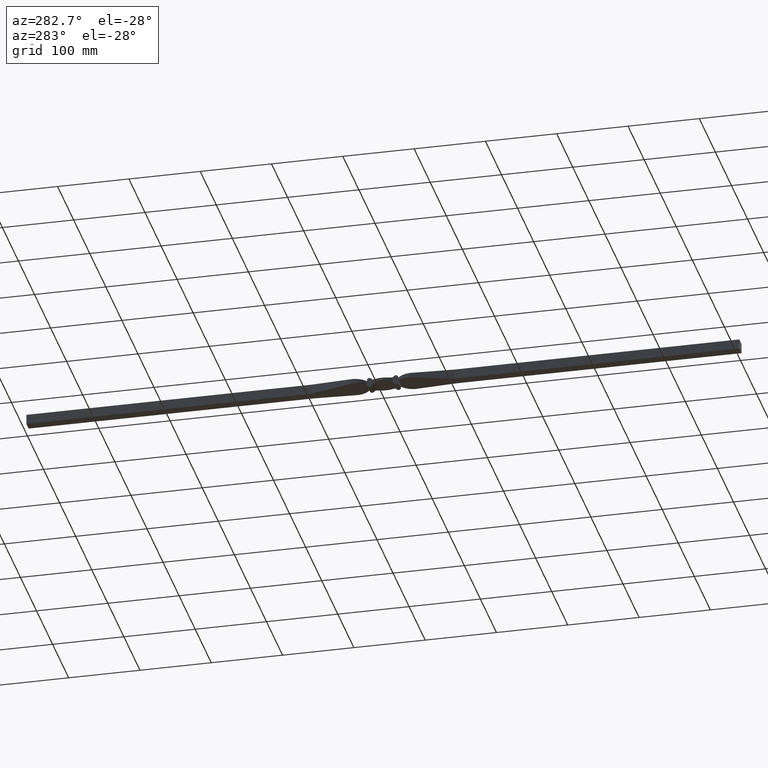
[diagram: clean part render]
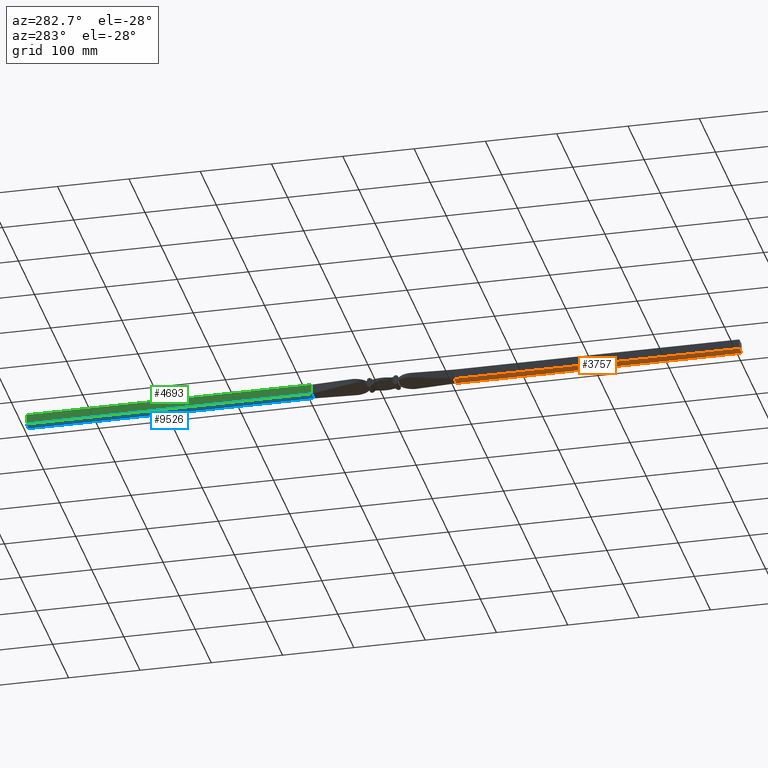
[diagram: same view with three faces highlighted in distinct colors, each labeled with its STEP entity id]
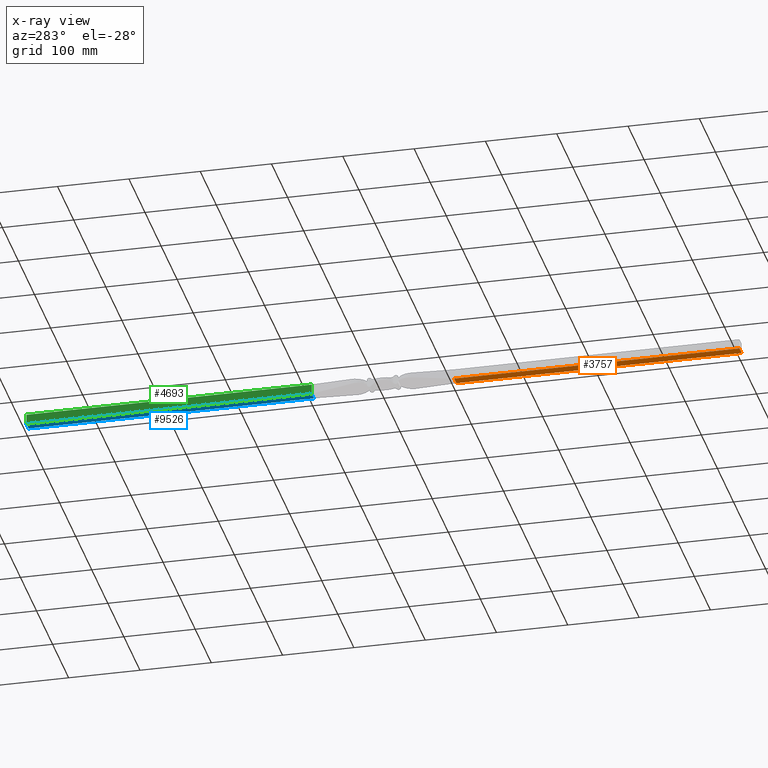
[diagram: x-ray of the same camera — body ghosted, the three highlighted faces saturated]
A machine part, auxiliary view with three faces highlighted in distinct colors.
The next image is the same camera in x-ray (body ghosted, the three faces saturated) — at least one of them is partly hidden behind the body in this view.
Their STEP definitions:

[orange] entity #3757 — the highlighted planar face has unit normal (0, 0, 1).
#236 = ORIENTED_EDGE ( 'NONE', *, *, #8750, .T. ) ;
#1062 = CARTESIAN_POINT ( 'NONE',  ( -7.000000000004256151, -1019.798989873223377, -6.999999999999999112 ) ) ;
#1209 = VECTOR ( 'NONE', #10844, 1000.000000000000000 ) ;
#1742 = EDGE_LOOP ( 'NONE', ( #7665, #5087, #236, #10213 ) ) ;
#2050 = VECTOR ( 'NONE', #7137, 1000.000000000000000 ) ;
#2110 = CARTESIAN_POINT ( 'NONE',  ( 6.999999999998149924, -500.0000000000000000, -6.999999999999999112 ) ) ;
#2450 = VECTOR ( 'NONE', #10319, 1000.000000000000000 ) ;
#2593 = CARTESIAN_POINT ( 'NONE',  ( 0.000000000000000000, -100.0000000000000000, -7.000000000000000000 ) ) ;
#2920 = LINE ( 'NONE', #1062, #11538 ) ;
#3216 = FACE_OUTER_BOUND ( 'NONE', #1742, .T. ) ;
#3276 = EDGE_CURVE ( 'NONE', #6981, #3714, #5532, .T. ) ;
#3419 = VERTEX_POINT ( 'NONE', #2110 ) ;
#3566 = CARTESIAN_POINT ( 'NONE',  ( -7.000000000004256151, -500.0000000000000000, -6.999999999999999112 ) ) ;
#3594 = CARTESIAN_POINT ( 'NONE',  ( -7.000000000001851852, -500.0000000000000000, -6.999999999999999112 ) ) ;
#3689 = DIRECTION ( 'NONE',  ( 0.000000000000000000, 0.000000000000000000, 1.000000000000000000 ) ) ;
#3714 = VERTEX_POINT ( 'NONE', #10239 ) ;
#3757 = ADVANCED_FACE ( 'NONE', ( #3216 ), #8432, .F. ) ;
#4331 = CARTESIAN_POINT ( 'NONE',  ( 7.000000000000000888, -100.0000000000000284, -6.999999999999999112 ) ) ;
#4359 = LINE ( 'NONE', #10350, #2450 ) ;
#4629 = DIRECTION ( 'NONE',  ( 4.625929269271485322E-15, 1.000000000000000000, -0.000000000000000000 ) ) ;
#5087 = ORIENTED_EDGE ( 'NONE', *, *, #7101, .T. ) ;
#5532 = LINE ( 'NONE', #2593, #2050 ) ;
#6230 = AXIS2_PLACEMENT_3D ( 'NONE', #7333, #3689, #6770 ) ;
#6770 = DIRECTION ( 'NONE',  ( 1.000000000000000000, 0.000000000000000000, -0.000000000000000000 ) ) ;
#6981 = VERTEX_POINT ( 'NONE', #4331 ) ;
#7101 = EDGE_CURVE ( 'NONE', #3419, #10242, #10869, .T. ) ;
#7137 = DIRECTION ( 'NONE',  ( -1.000000000000000000, 0.000000000000000000, 0.000000000000000000 ) ) ;
#7333 = CARTESIAN_POINT ( 'NONE',  ( -7.000000000004256151, -1019.798989873223377, -6.999999999999999112 ) ) ;
#7665 = ORIENTED_EDGE ( 'NONE', *, *, #10916, .F. ) ;
#8432 = PLANE ( 'NONE',  #6230 ) ;
#8750 = EDGE_CURVE ( 'NONE', #10242, #3714, #2920, .T. ) ;
#10213 = ORIENTED_EDGE ( 'NONE', *, *, #3276, .F. ) ;
#10239 = CARTESIAN_POINT ( 'NONE',  ( -7.000000000000000888, -100.0000000000000000, -6.999999999999999112 ) ) ;
#10242 = VERTEX_POINT ( 'NONE', #3594 ) ;
#10319 = DIRECTION ( 'NONE',  ( 4.625929269271485322E-15, 1.000000000000000000, -0.000000000000000000 ) ) ;
#10350 = CARTESIAN_POINT ( 'NONE',  ( 6.999999999995745625, -1019.798989873223377, -6.999999999999999112 ) ) ;
#10844 = DIRECTION ( 'NONE',  ( -1.000000000000000000, 0.000000000000000000, 0.000000000000000000 ) ) ;
#10869 = LINE ( 'NONE', #3566, #1209 ) ;
#10916 = EDGE_CURVE ( 'NONE', #3419, #6981, #4359, .T. ) ;
#11538 = VECTOR ( 'NONE', #4629, 1000.000000000000000 ) ;

[blue] entity #9526 — the highlighted planar face has unit normal (0, 0, 1).
#185 = ORIENTED_EDGE ( 'NONE', *, *, #9418, .T. ) ;
#868 = ORIENTED_EDGE ( 'NONE', *, *, #11120, .F. ) ;
#1256 = PLANE ( 'NONE',  #10179 ) ;
#1375 = DIRECTION ( 'NONE',  ( -1.000000000000000000, 0.000000000000000000, 0.000000000000000000 ) ) ;
#1673 = CARTESIAN_POINT ( 'NONE',  ( 6.999999999999998224, 1019.798989873223377, -7.000000000000000000 ) ) ;
#1704 = DIRECTION ( 'NONE',  ( -0.000000000000000000, -1.000000000000000000, -0.000000000000000000 ) ) ;
#1988 = ORIENTED_EDGE ( 'NONE', *, *, #3893, .F. ) ;
#2531 = CARTESIAN_POINT ( 'NONE',  ( 7.000000000000000888, 100.0000000000000000, -6.999999999999999112 ) ) ;
#2785 = VERTEX_POINT ( 'NONE', #6057 ) ;
#3019 = LINE ( 'NONE', #1673, #10496 ) ;
#3235 = CARTESIAN_POINT ( 'NONE',  ( -7.000000000000002665, 500.0000000000000000, -7.000000000000000000 ) ) ;
#3893 = EDGE_CURVE ( 'NONE', #2785, #9207, #4652, .T. ) ;
#4536 = CARTESIAN_POINT ( 'NONE',  ( -7.000000000000002665, 1019.798989873223377, -7.000000000000000000 ) ) ;
#4652 = LINE ( 'NONE', #3235, #10837 ) ;
#4977 = DIRECTION ( 'NONE',  ( 1.000000000000000000, 0.000000000000000000, -0.000000000000000000 ) ) ;
#5056 = VECTOR ( 'NONE', #11338, 1000.000000000000000 ) ;
#5392 = VECTOR ( 'NONE', #10033, 1000.000000000000000 ) ;
#6057 = CARTESIAN_POINT ( 'NONE',  ( 6.999999999999998224, 500.0000000000000000, -7.000000000000000000 ) ) ;
#6712 = VERTEX_POINT ( 'NONE', #2531 ) ;
#7109 = CARTESIAN_POINT ( 'NONE',  ( -7.000000000000002665, 500.0000000000000000, -7.000000000000000000 ) ) ;
#7637 = VERTEX_POINT ( 'NONE', #9660 ) ;
#7646 = LINE ( 'NONE', #9389, #5056 ) ;
#8093 = FACE_OUTER_BOUND ( 'NONE', #9164, .T. ) ;
#9164 = EDGE_LOOP ( 'NONE', ( #1988, #10185, #185, #868 ) ) ;
#9207 = VERTEX_POINT ( 'NONE', #7109 ) ;
#9389 = CARTESIAN_POINT ( 'NONE',  ( -7.000000000000002665, 100.0000000000000000, -7.000000000000000000 ) ) ;
#9418 = EDGE_CURVE ( 'NONE', #6712, #7637, #7646, .T. ) ;
#9500 = DIRECTION ( 'NONE',  ( 0.000000000000000000, 0.000000000000000000, 1.000000000000000000 ) ) ;
#9526 = ADVANCED_FACE ( 'NONE', ( #8093 ), #1256, .F. ) ;
#9660 = CARTESIAN_POINT ( 'NONE',  ( -7.000000000000002665, 100.0000000000000000, -7.000000000000000000 ) ) ;
#10033 = DIRECTION ( 'NONE',  ( -0.000000000000000000, -1.000000000000000000, -0.000000000000000000 ) ) ;
#10179 = AXIS2_PLACEMENT_3D ( 'NONE', #10320, #9500, #4977 ) ;
#10185 = ORIENTED_EDGE ( 'NONE', *, *, #10339, .T. ) ;
#10320 = CARTESIAN_POINT ( 'NONE',  ( -7.000000000000002665, 1019.798989873223377, -7.000000000000000000 ) ) ;
#10339 = EDGE_CURVE ( 'NONE', #2785, #6712, #3019, .T. ) ;
#10496 = VECTOR ( 'NONE', #1704, 1000.000000000000000 ) ;
#10548 = LINE ( 'NONE', #4536, #5392 ) ;
#10837 = VECTOR ( 'NONE', #1375, 1000.000000000000000 ) ;
#11120 = EDGE_CURVE ( 'NONE', #9207, #7637, #10548, .T. ) ;
#11338 = DIRECTION ( 'NONE',  ( -1.000000000000000000, -0.000000000000000000, -0.000000000000000000 ) ) ;

[green] entity #4693 — the highlighted planar face has unit normal (1, 0, -0).
#196 = LINE ( 'NONE', #6304, #7721 ) ;
#736 = EDGE_CURVE ( 'NONE', #1628, #4447, #196, .T. ) ;
#1001 = VECTOR ( 'NONE', #5192, 1000.000000000000000 ) ;
#1583 = LINE ( 'NONE', #10686, #1001 ) ;
#1628 = VERTEX_POINT ( 'NONE', #3470 ) ;
#1900 = AXIS2_PLACEMENT_3D ( 'NONE', #8935, #10780, #6189 ) ;
#2490 = PLANE ( 'NONE',  #1900 ) ;
#2782 = CARTESIAN_POINT ( 'NONE',  ( -7.000000000000000888, 100.0000000000000000, 6.999999999999999112 ) ) ;
#3470 = CARTESIAN_POINT ( 'NONE',  ( -7.000000000000000888, 500.0000000000000000, 7.000000000000000000 ) ) ;
#4447 = VERTEX_POINT ( 'NONE', #2782 ) ;
#4536 = CARTESIAN_POINT ( 'NONE',  ( -7.000000000000002665, 1019.798989873223377, -7.000000000000000000 ) ) ;
#4574 = ORIENTED_EDGE ( 'NONE', *, *, #5451, .F. ) ;
#4693 = ADVANCED_FACE ( 'NONE', ( #8772 ), #2490, .F. ) ;
#4892 = EDGE_CURVE ( 'NONE', #7637, #4447, #1583, .T. ) ;
#5148 = CARTESIAN_POINT ( 'NONE',  ( -7.000000000000002665, 500.0000000000000000, -7.000000000000000000 ) ) ;
#5192 = DIRECTION ( 'NONE',  ( 1.239088197126290817E-16, 0.000000000000000000, 1.000000000000000000 ) ) ;
#5392 = VECTOR ( 'NONE', #10033, 1000.000000000000000 ) ;
#5451 = EDGE_CURVE ( 'NONE', #9207, #1628, #7736, .T. ) ;
#5900 = ORIENTED_EDGE ( 'NONE', *, *, #4892, .T. ) ;
#6189 = DIRECTION ( 'NONE',  ( -1.239088197126290817E-16, 0.000000000000000000, -1.000000000000000000 ) ) ;
#6304 = CARTESIAN_POINT ( 'NONE',  ( -7.000000000000000888, 1019.798989873223377, 7.000000000000000000 ) ) ;
#7109 = CARTESIAN_POINT ( 'NONE',  ( -7.000000000000002665, 500.0000000000000000, -7.000000000000000000 ) ) ;
#7637 = VERTEX_POINT ( 'NONE', #9660 ) ;
#7721 = VECTOR ( 'NONE', #8204, 1000.000000000000000 ) ;
#7736 = LINE ( 'NONE', #5148, #8183 ) ;
#7789 = DIRECTION ( 'NONE',  ( 1.239088197126290817E-16, -0.000000000000000000, 1.000000000000000000 ) ) ;
#8183 = VECTOR ( 'NONE', #7789, 1000.000000000000000 ) ;
#8204 = DIRECTION ( 'NONE',  ( -0.000000000000000000, -1.000000000000000000, -0.000000000000000000 ) ) ;
#8628 = ORIENTED_EDGE ( 'NONE', *, *, #736, .F. ) ;
#8772 = FACE_OUTER_BOUND ( 'NONE', #9069, .T. ) ;
#8935 = CARTESIAN_POINT ( 'NONE',  ( -7.000000000000002665, 1019.798989873223377, -7.000000000000000000 ) ) ;
#9069 = EDGE_LOOP ( 'NONE', ( #4574, #11511, #5900, #8628 ) ) ;
#9207 = VERTEX_POINT ( 'NONE', #7109 ) ;
#9660 = CARTESIAN_POINT ( 'NONE',  ( -7.000000000000002665, 100.0000000000000000, -7.000000000000000000 ) ) ;
#10033 = DIRECTION ( 'NONE',  ( -0.000000000000000000, -1.000000000000000000, -0.000000000000000000 ) ) ;
#10548 = LINE ( 'NONE', #4536, #5392 ) ;
#10686 = CARTESIAN_POINT ( 'NONE',  ( -7.000000000000002665, 100.0000000000000000, -7.000000000000000000 ) ) ;
#10780 = DIRECTION ( 'NONE',  ( 1.000000000000000000, 0.000000000000000000, -1.239088197126290817E-16 ) ) ;
#11120 = EDGE_CURVE ( 'NONE', #9207, #7637, #10548, .T. ) ;
#11511 = ORIENTED_EDGE ( 'NONE', *, *, #11120, .T. ) ;